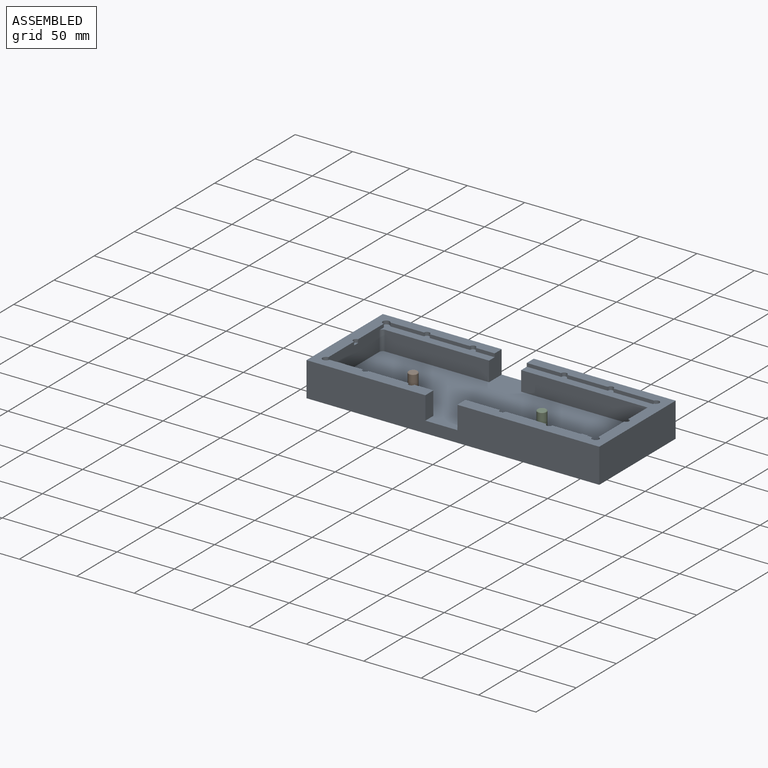
[diagram: assembled view]
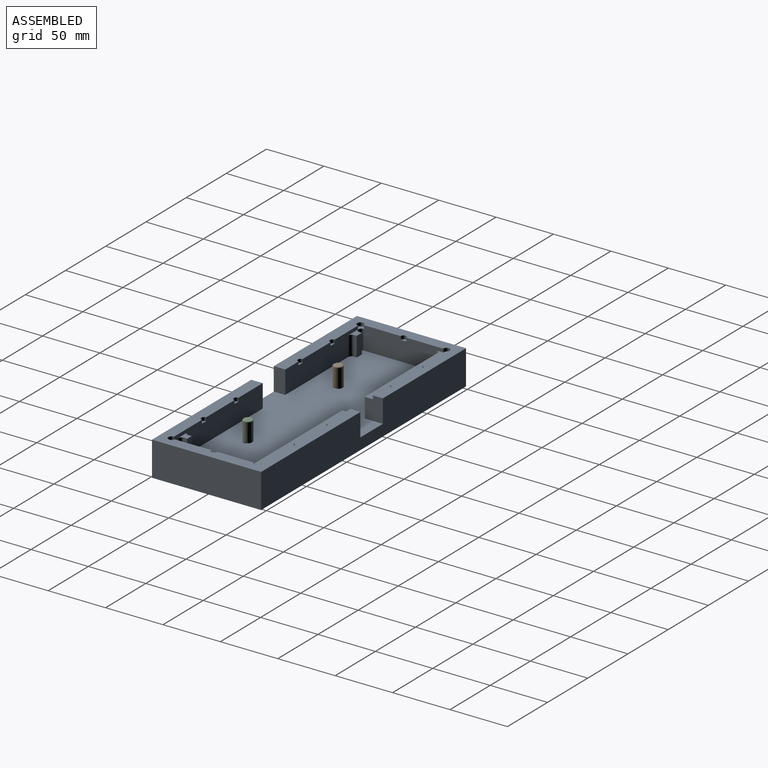
[diagram: assembled view, second angle]
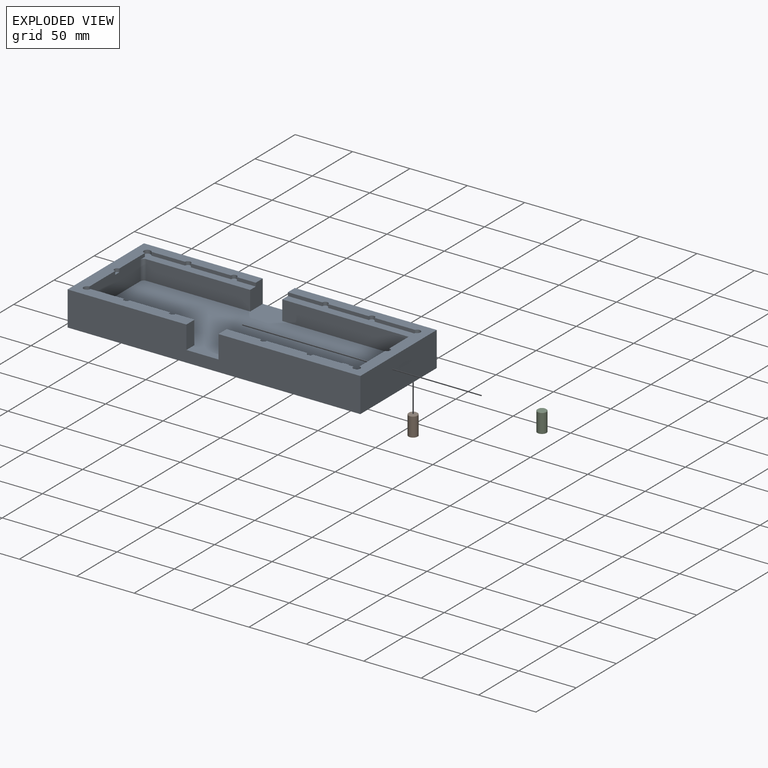
[diagram: exploded view]
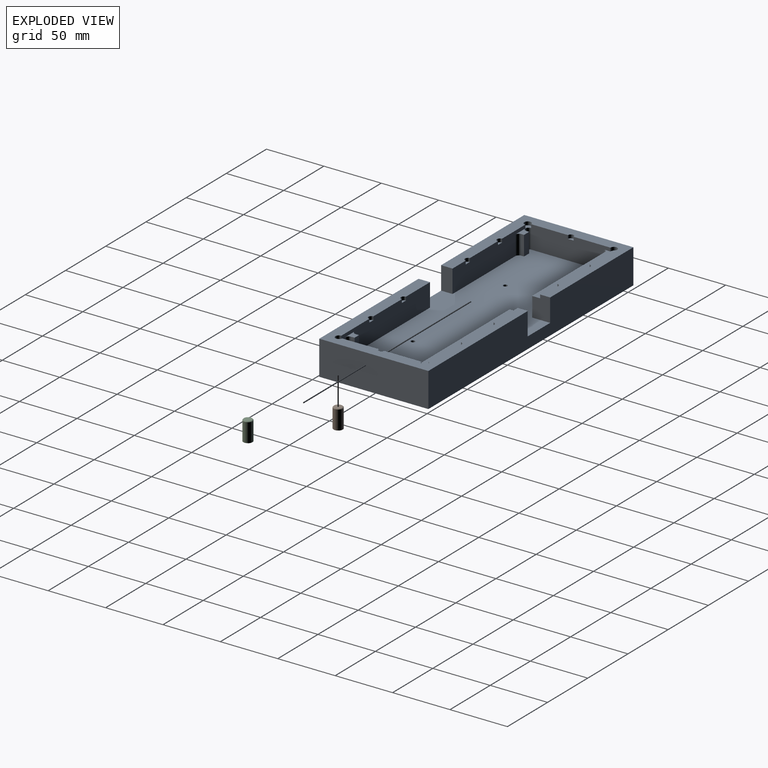
[diagram: exploded view, second angle]
ASSEMBLY  parts=3 mates=2
PART A: 72 faces, bbox 255x95x30 mm
  f0: plane 29.34x3mm, normal (0,-1,0), area 88mm2, adj f11,f17,f36,f71
  f1: plane 35x3mm, normal (0,-1,0), area 105mm2, adj f11,f17,f70,f71
  f2: plane 35.21x3mm, normal (0,-1,0), area 105.6mm2, adj f5,f15,f35,f69
  f3: plane 35.5x3mm, normal (0,-1,0), area 106.5mm2, adj f5,f15,f68,f69
  f4: plane 90.54x20mm, normal (0,1,0), area 1569.9mm2, adj f9,f11,f30,f39,f41,f43,f44,f49
  f5: plane 123.55x95mm, normal (0,0,1), area 2968mm2, adj f2,f3,f6,f8,f10,f19,f21,f22
  f6: plane 113.81x20mm, normal (0,1,0), area 2040.1mm2, adj f5,f8,f9,f13,f31,f37,f38,f42
  f7: plane 69x20mm, normal (1,0,0), area 1268.4mm2, adj f9,f11,f17,f36,f39,f48,f49,f58
  f8: plane 72.02x20mm, normal (-1,0,0), area 1319.5mm2, adj f5,f6,f9,f15,f35,f37,f38,f47
  f9: plane 235.3x95mm, normal (0,0,1), area 16923.7mm2, adj f4,f6,f7,f8,f10,f14,f16,f19
  f10: plane 255x30mm, normal (0,-1,0), area 7090.1mm2, adj f5,f9,f11,f12,f18,f20,f21,f22
  f11: plane 103.5x95mm, normal (0,0,1), area 2606.8mm2, adj f0,f1,f4,f7,f10,f16,f18,f19
  f12: plane 9.97x0.05mm, normal (0,0,1), area 0.5mm2, adj f10,f13,f21,f42
  f13: plane 18x0.05mm, normal (0,-1,0), area 0.9mm2, adj f6,f12,f21
  f14: plane 110.81x17mm, normal (0,-1,0), area 1883.7mm2, adj f9,f15,f23,f47
  f15: plane 116.46x12.49mm, normal (0,0,1), area 832.5mm2, adj f2,f3,f8,f14,f23,f34,f35,f47
  f16: plane 20x15.71mm, normal (1,0,0), area 293.3mm2, adj f9,f11,f17,f19,f32,f33
  f17: plane 96.54x12.49mm, normal (0,0,1), area 692.4mm2, adj f0,f1,f7,f16,f32,f33,f36,f48
  f18: plane 95x30mm, normal (-1,0,0), area 2850mm2, adj f10,f11,f19,f20
  f19: plane 255x30mm, normal (0,1,0), area 7091mm2, adj f5,f9,f11,f16,f18,f20,f22,f23
  f20: plane 255x95mm, normal (0,0,-1), area 24158.6mm2, adj f10,f18,f19,f22,f52,f53
  f21: plane 18x9.97mm, normal (-1,0,0), area 179.4mm2, adj f5,f10,f12,f13
  f22: plane 95x30mm, normal (1,0,0), area 2850mm2, adj f5,f10,f19,f20
  f23: plane 20x15.71mm, normal (-1,0,0), area 293.3mm2, adj f5,f9,f14,f15,f19,f34
  f24: plane 17x2.47mm, normal (-1,0,0), area 42mm2, adj f9,f25,f30,f44
  f25: plane 17x6.41mm, normal (0,1,0), area 109mm2, adj f9,f24,f26,f30
  f26: plane 17x2.47mm, normal (1,0,0), area 42mm2, adj f9,f25,f30,f43
  f27: plane 17x5.53mm, normal (0,1,0), area 94mm2, adj f9,f28,f29,f31
  f28: plane 17x3.05mm, normal (-1,0,0), area 51.8mm2, adj f9,f27,f31,f45
  f29: plane 17x3.05mm, normal (1,0,0), area 51.8mm2, adj f9,f27,f31,f46
  f30: plane 12.41x5.47mm, normal (0,0,1), area 38.9mm2, adj f4,f24,f25,f26,f43,f44
  f31: plane 11.53x6.05mm, normal (0,0,1), area 37.3mm2, adj f6,f27,f28,f29,f45,f46
  f32: plane 90.54x17mm, normal (0,-1,0), area 1539.2mm2, adj f9,f16,f17,f48
  f33: plane 16.5x3mm, normal (0,-1,0), area 49.5mm2, adj f11,f16,f17,f70
  f34: plane 30.05x3mm, normal (0,-1,0), area 90.2mm2, adj f5,f15,f23,f68
  f35: cylinder r=3mm len=5.98mm, axis (0,0,1), area 37.3mm2, adj f2,f5,f8,f15
  f36: cylinder r=3mm len=6mm, axis (0,0,1), area 38.4mm2, adj f0,f7,f11,f17
  f37: cylinder r=3mm len=6mm, axis (0,0,1), area 41.4mm2, adj f5,f6,f8,f38
  f38: plane 6x5.98mm, normal (0,0,1), area 20.2mm2, adj f6,f8,f37
  f39: cylinder r=3mm len=6mm, axis (0,0,1), area 42.4mm2, adj f4,f7,f11,f40
  f40: plane 6x6mm, normal (0,0,1), area 23.1mm2, adj f39,f49
  f41: plane 20x9.97mm, normal (1,0,0), area 199.3mm2, adj f4,f9,f10,f11
  f42: plane 9.97x2mm, normal (-1,0,0), area 19.9mm2, adj f6,f9,f10,f12
  f43: cylinder r=3mm len=17mm, axis (0,0,1), area 80.1mm2, adj f4,f9,f26,f30
  f44: cylinder r=3mm len=17mm, axis (0,0,1), area 80.1mm2, adj f4,f9,f24,f30
  f45: cylinder r=3mm len=17mm, axis (0,0,-1), area 80.1mm2, adj f6,f9,f28,f31
  f46: cylinder r=3mm len=17mm, axis (0,0,-1), area 80.1mm2, adj f6,f9,f29,f31
  f47: cylinder r=3mm len=17mm, axis (0,0,-1), area 80.1mm2, adj f8,f9,f14,f15
  f48: cylinder r=3mm len=17mm, axis (0,0,-1), area 80.1mm2, adj f7,f9,f17,f32
  f49: cylinder r=3mm len=17mm, axis (0,0,1), area 80.1mm2, adj f4,f7,f9,f40
  f50: cylinder r=1.7mm len=8.25mm, axis (0,0,-1), area 88.1mm2, adj f52,f54
  f51: cylinder r=1.7mm len=8.25mm, axis (0,0,-1), area 88.1mm2, adj f53,f55
  f52: cone r=1.7mm half-angle=45deg, axis (0,0,-1), area 34.1mm2, adj f20,f50
  f53: cone r=1.7mm half-angle=45deg, axis (0,0,-1), area 34.1mm2, adj f20,f51
  f54: cone r=1.7mm half-angle=45deg, axis (0,0,1), area 3.2mm2, adj f9,f50
  f55: cone r=1.7mm half-angle=45deg, axis (0,0,1), area 3.2mm2, adj f9,f51
  f56: cylinder r=2.5mm len=5mm, axis (0,0,1), area 23.6mm2, adj f5,f8,f57
  f57: plane 5x2.5mm, normal (0,0,1), area 9.8mm2, adj f8,f56
  f58: cylinder r=2.5mm len=5mm, axis (0,0,1), area 23.6mm2, adj f7,f11,f59
  f59: plane 5x2.5mm, normal (0,0,1), area 9.8mm2, adj f7,f58
  f60: cylinder r=2.5mm len=5mm, axis (0,0,1), area 23.6mm2, adj f5,f6,f61
  f61: plane 5x2.5mm, normal (0,0,1), area 9.8mm2, adj f6,f60
  f62: cylinder r=2.5mm len=5mm, axis (0,0,1), area 23.6mm2, adj f5,f6,f63
  f63: plane 5x2.5mm, normal (0,0,1), area 9.8mm2, adj f6,f62
  f64: cylinder r=2.5mm len=5mm, axis (0,0,1), area 23.6mm2, adj f4,f11,f65
  f65: plane 5x2.5mm, normal (0,0,1), area 9.8mm2, adj f4,f64
  f66: cylinder r=2.5mm len=5mm, axis (0,0,1), area 23.6mm2, adj f4,f11,f67
  f67: plane 5x2.5mm, normal (0,0,1), area 9.8mm2, adj f4,f66
  f68: cylinder r=2.5mm len=5mm, axis (0,0,1), area 23.6mm2, adj f3,f5,f15,f34
  f69: cylinder r=2.5mm len=5mm, axis (0,0,1), area 23.6mm2, adj f2,f3,f5,f15
  f70: cylinder r=2.5mm len=5mm, axis (0,0,1), area 23.6mm2, adj f1,f11,f17,f33
  f71: cylinder r=2.5mm len=5mm, axis (0,0,1), area 23.6mm2, adj f0,f1,f11,f17
PART B: 6 faces, bbox 8x8x17 mm
  f0: cylinder r=4mm len=16.5mm, axis (0,0,-1), area 414.7mm2, adj f2,f3
  f1: plane 7x7mm, normal (0,0,1), area 38.5mm2, adj f3
  f2: plane 8x8mm, normal (0,0,-1), area 45.4mm2, adj f0,f5
  f3: cone r=3.5mm half-angle=45deg, axis (0,0,-1), area 16.7mm2, adj f0,f1
  f4: cone r=0mm half-angle=59deg, axis (0,0,-1), area 5.7mm2, adj f5
  f5: cylinder r=1.25mm len=10mm, axis (0,0,-1), area 78.5mm2, adj f2,f4
PART C: same geometry as B
PLACE A t=(-51.5,-12.1,-10)mm
PLACE B t=(18.5,20.5,0)mm
PLACE C t=(130.75,20.5,0)mm
MATE planar A.f9 <-> B.f0  axis (0,0,1) through (75.71,33.14,0)mm
MATE cylindrical B.f4 <-> A.f51  axis (0,0,-1) through (18.5,20.5,0)mm
